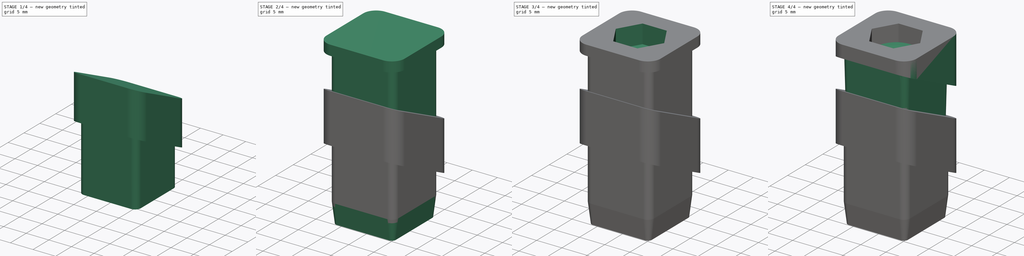
[diagram: build sequence overview — one tinted view per stage of 4, left to right]
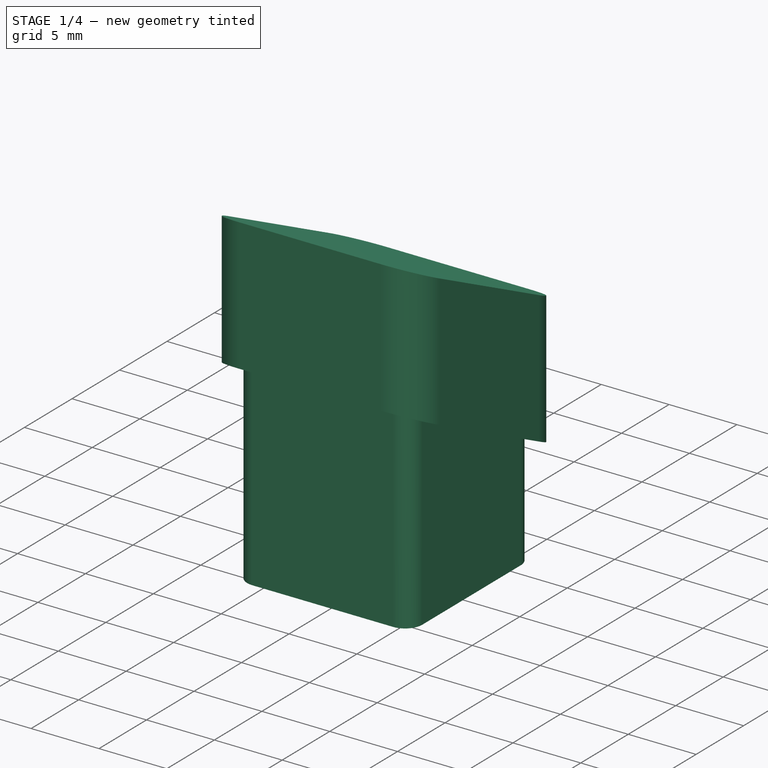
[diagram: stage 1 of 4 — iso view after this stage's code; geometry added in this stage tinted green]
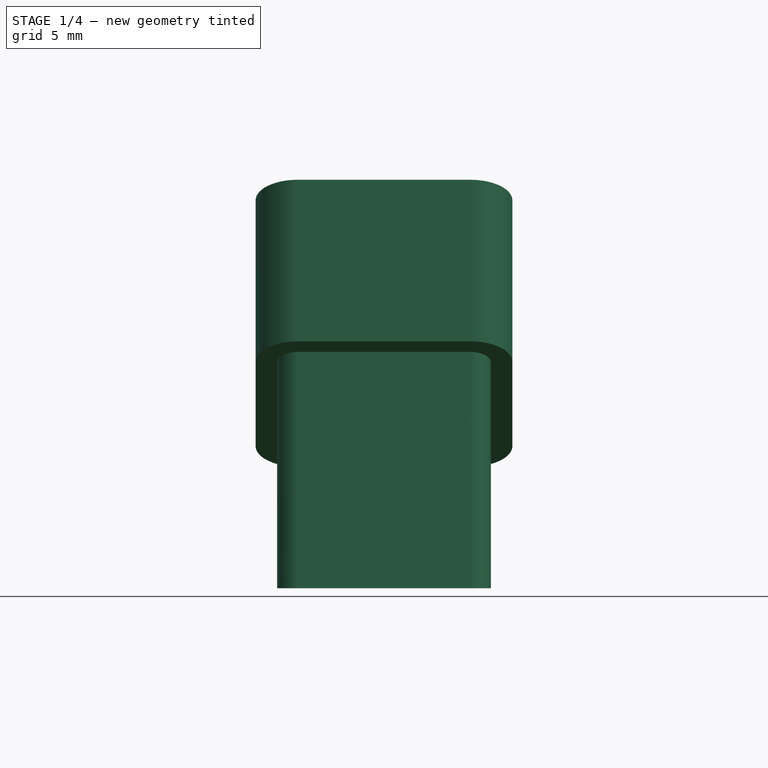
[diagram: stage 1 of 4 — front view after this stage's code; geometry added in this stage tinted green]
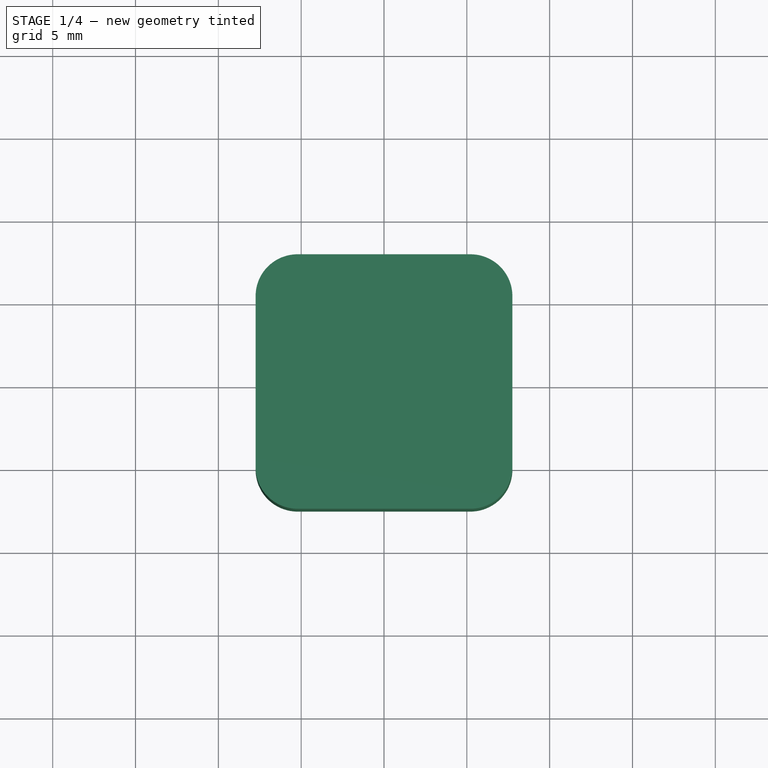
[diagram: stage 1 of 4 — top view after this stage's code; geometry added in this stage tinted green]
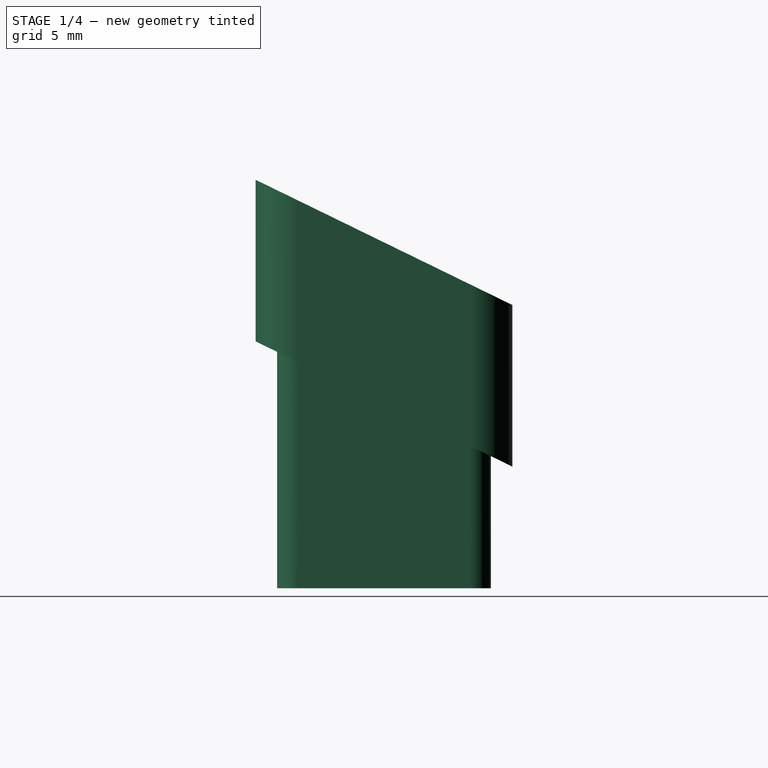
[diagram: stage 1 of 4 — right view after this stage's code; geometry added in this stage tinted green]
FCSTD DOCUMENT  (FreeCAD 1.0R39319 (Git))
Label: harmonograph_pipe_cap
License: CERN Open Hardware Licence permissive
LicenseURL: https://cern-ohl.web.cern.ch/
objects: Sketcher::SketchObject×6, PartDesign::Pad×6, PartDesign::Plane×3, PartDesign::Body×2, App::VarSet×1, Part::FeaturePython×1, PartDesign::Pocket×1, PartDesign::Hole×1, PartDesign::Draft×1, PartDesign::Chamfer×1
note: 48 computed .brp shape members not serialized (recipe doc carries the construction recipe); baked Part::Feature solids carry a one-line shape summary decoded from their .brp

FEATURE [PartDesign::Body] Body  label="pipe_cap"
  AllowCompound = false
  Group = -> [Sketch,Pad,Sketch001,Pad001,Sketch002,Pocket,Sketch003,Hole,DatumPlane,Pad002,Draft]
  Origin = -> Origin
  Tip = -> Draft
FEATURE [Sketcher::SketchObject] Sketch004
  ArcFitTolerance = 1e-06
  AttachmentSupport = -> [XY_Plane001]
  FullyConstrained = true
  MakeInternals = false
  MapMode = 5
  expr: Constraints[19] = VarSet.pipe_size_outside
  expr: Constraints[20] = VarSet.pipe_size_outside
  expr: Constraints[21] = 1.27 * 2
  sketch-geometry (10):
    g0: LineSegment StartX=7.75 StartY=-5.21 StartZ=0 EndX=7.75 EndY=5.21 EndZ=0
    g1: LineSegment StartX=5.21 StartY=7.75 StartZ=0 EndX=-5.21 EndY=7.75 EndZ=0
    g2: LineSegment StartX=-7.75 StartY=5.21 StartZ=0 EndX=-7.75 EndY=-5.21 EndZ=0
    g3: LineSegment StartX=-5.21 StartY=-7.75 StartZ=0 EndX=5.21 EndY=-7.75 EndZ=0
    g4: ArcOfCircle CenterX=5.21 CenterY=-5.21 CenterZ=0 NormalX=0 NormalY=0 NormalZ=1 AngleXU=0 Radius=2.54 StartAngle=4.71239 EndAngle=6.28319
    g5: ArcOfCircle CenterX=5.21 CenterY=5.21 CenterZ=0 NormalX=0 NormalY=0 NormalZ=1 AngleXU=0 Radius=2.54 StartAngle=0 EndAngle=1.5708
    g6: ArcOfCircle CenterX=-5.21 CenterY=5.21 CenterZ=0 NormalX=0 NormalY=0 NormalZ=1 AngleXU=0 Radius=2.54 StartAngle=1.5708 EndAngle=3.14159
    g7: ArcOfCircle CenterX=-5.21 CenterY=-5.21 CenterZ=0 NormalX=0 NormalY=0 NormalZ=1 AngleXU=0 Radius=2.54 StartAngle=3.14159 EndAngle=4.71239
    g8: GeomPoint [constr] X=-7.75 Y=7.75 Z=0
    g9: GeomPoint [constr] X=0 Y=0 Z=0
  constraints (22):
    c: Tangent(g0,g4) = -1.5708
    c: Tangent(g0,g5) = -1.5708
    c: Tangent(g1,g5) = -1.5708
    c: Tangent(g1,g6) = -1.5708
    c: Tangent(g2,g6) = -1.5708
    c: Tangent(g2,g7) = -1.5708
    c: Tangent(g3,g7) = -1.5708
    c: Tangent(g3,g4) = -1.5708
    c: Vertical(g0)
    c: Vertical(g2)
    c: Horizontal(g1)
    c: Horizontal(g3)
    c: Equal(g4,g5)
    c: Equal(g5,g6)
    c: Equal(g6,g7)
    c: Symmetric(g2,g0,g9)
    c: PointOnObject(g8,g1)
    c: PointOnObject(g8,g2)
    c: Coincident(g9,g-1)
    c: DistanceX(g2,g0) = 15.5
    c: DistanceY(g3,g1) = 15.5
    c: Radius(g7) = 2.54
FEATURE [PartDesign::Plane] DatumPlane001
  AttachmentOffset = pos=(0,-10,0) rot=(-1,0,0;0.453786rad)
  AttachmentSupport = -> [XY_Plane001]
  Length = 61.5636
  MapMode = 5
  Placement = pos=(0,-10,0) rot=(-1,0,0;0.453786rad)
  ResizeMode = 0
  Width = 78.4218
FEATURE [PartDesign::Plane] DatumPlane002
  AttachmentOffset = pos=(0,10,0) rot=(-1,0,0;0.453786rad)
  AttachmentSupport = -> [XY_Plane001]
  Length = 61.5636
  MapMode = 5
  Placement = pos=(0,10,0) rot=(-1,0,0;0.453786rad)
  ResizeMode = 0
  Width = 78.4218
FEATURE [PartDesign::Pad] Pad003
  Direction = (0,0,1)
  Length = 10
  Length2 = 10
  Midplane = true
  Profile = -> Sketch004
  ReferenceAxis = -> Sketch004 [N_Axis]
  Refine = true
  Suppressed = false
  Type = 3
  UpToFace = -> DatumPlane001
FEATURE [PartDesign::Pad] Pad004
  BaseFeature = -> Pad003
  Direction = (0,0,1)
  Length = 10
  Length2 = 10
  Profile = -> Sketch004
  ReferenceAxis = -> Sketch004 [N_Axis]
  Refine = true
  Suppressed = false
  Type = 3
  UpToFace = -> DatumPlane002 [Plane]
FEATURE [Sketcher::SketchObject] Sketch005
  ArcFitTolerance = 1e-06
  AttachmentSupport = -> [XY_Plane001]
  FullyConstrained = true
  MakeInternals = false
  MapMode = 5
  expr: Constraints[19] = VarSet.pipe_size_inside
  expr: Constraints[20] = VarSet.pipe_size_inside
  sketch-geometry (10):
    g0: LineSegment StartX=6.45 StartY=-5.18 StartZ=0 EndX=6.45 EndY=5.18 EndZ=0
    g1: LineSegment StartX=5.18 StartY=6.45 StartZ=0 EndX=-5.18 EndY=6.45 EndZ=0
    g2: LineSegment StartX=-6.45 StartY=5.18 StartZ=0 EndX=-6.45 EndY=-5.18 EndZ=0
    g3: LineSegment StartX=-5.18 StartY=-6.45 StartZ=0 EndX=5.18 EndY=-6.45 EndZ=0
    g4: ArcOfCircle CenterX=5.18 CenterY=-5.18 CenterZ=0 NormalX=0 NormalY=0 NormalZ=1 AngleXU=0 Radius=1.27 StartAngle=4.71239 EndAngle=6.28319
    g5: ArcOfCircle CenterX=5.18 CenterY=5.18 CenterZ=0 NormalX=0 NormalY=0 NormalZ=1 AngleXU=0 Radius=1.27 StartAngle=1.1885e-12 EndAngle=1.5708
    g6: ArcOfCircle CenterX=-5.18 CenterY=5.18 CenterZ=0 NormalX=0 NormalY=0 NormalZ=1 AngleXU=0 Radius=1.27 StartAngle=1.5708 EndAngle=3.14159
    g7: ArcOfCircle CenterX=-5.18 CenterY=-5.18 CenterZ=0 NormalX=0 NormalY=0 NormalZ=1 AngleXU=0 Radius=1.27 StartAngle=3.14159 EndAngle=4.71239
    g8: GeomPoint [constr] X=-6.45 Y=6.45 Z=0
    g9: GeomPoint [constr] X=0 Y=0 Z=0
  constraints (22):
    c: Tangent(g0,g4) = -1.5708
    c: Tangent(g0,g5) = -1.5708
    c: Tangent(g1,g5) = -1.5708
    c: Tangent(g1,g6) = -1.5708
    c: Tangent(g2,g6) = -1.5708
    c: Tangent(g2,g7) = -1.5708
    c: Tangent(g3,g7) = -1.5708
    c: Tangent(g3,g4) = -1.5708
    c: Vertical(g0)
    c: Vertical(g2)
    c: Horizontal(g1)
    c: Horizontal(g3)
    c: Equal(g4,g5)
    c: Equal(g5,g6)
    c: Equal(g6,g7)
    c: Symmetric(g2,g0,g9)
    c: PointOnObject(g8,g1)
    c: PointOnObject(g8,g2)
    c: Coincident(g9,g-1)
    c: Distance(g2,g0) = 12.9
    c: DistanceY(g3,g1) = 12.9
    c: Radius(g4) = 1.27
FEATURE [PartDesign::Pad] Pad005
  BaseFeature = -> Pad004
  Direction = (0,0,1)
  Length = 16
  Length2 = 10
  Profile = -> Sketch005
  ReferenceAxis = -> Sketch005 [N_Axis]
  Refine = true
  Reversed = true
  Suppressed = false
  Type = 0
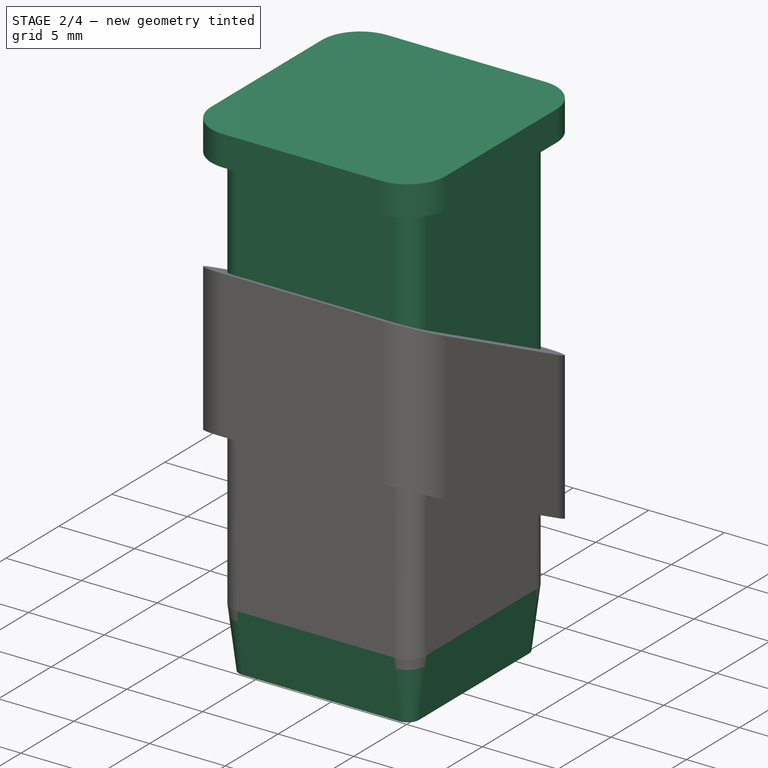
[diagram: stage 2 of 4 — iso view after this stage's code; geometry added in this stage tinted green]
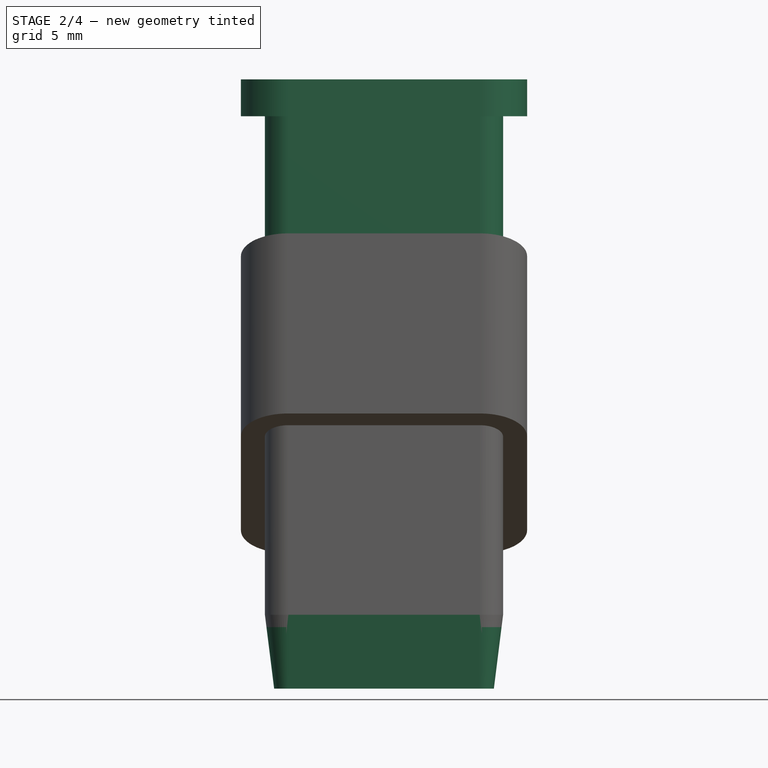
[diagram: stage 2 of 4 — front view after this stage's code; geometry added in this stage tinted green]
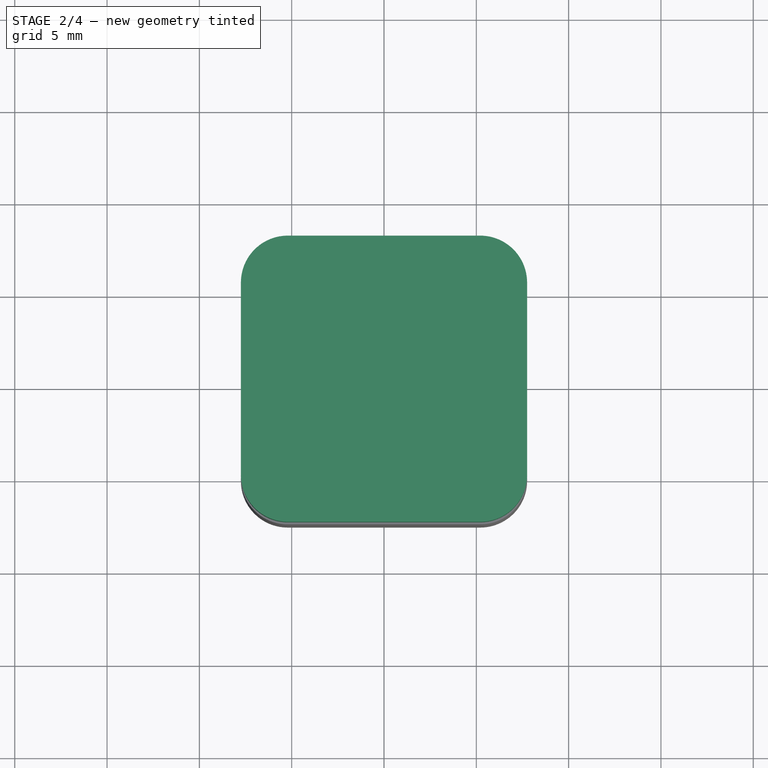
[diagram: stage 2 of 4 — top view after this stage's code; geometry added in this stage tinted green]
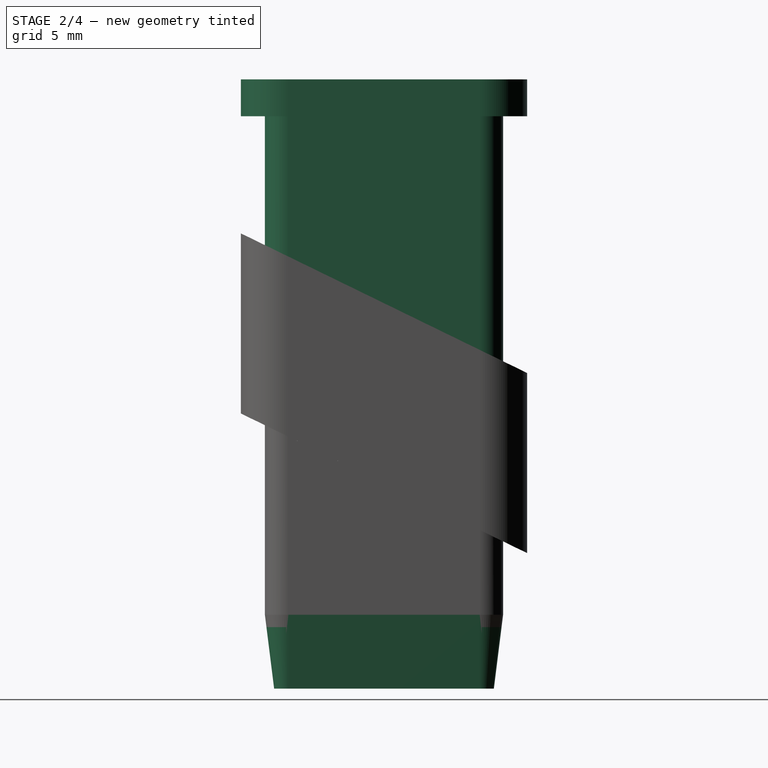
[diagram: stage 2 of 4 — right view after this stage's code; geometry added in this stage tinted green]
FEATURE [Sketcher::SketchObject] Sketch
  ArcFitTolerance = 1e-06
  AttachmentSupport = -> [XY_Plane]
  FullyConstrained = true
  MakeInternals = false
  MapMode = 5
  expr: Constraints[18] = VarSet.pipe_size_inside
  expr: Constraints[19] = VarSet.pipe_size_inside
  sketch-geometry (10):
    g0: LineSegment StartX=-5.18 StartY=-6.45 StartZ=0 EndX=5.18 EndY=-6.45 EndZ=0
    g1: LineSegment StartX=6.45 StartY=-5.18 StartZ=0 EndX=6.45 EndY=5.18 EndZ=0
    g2: LineSegment StartX=5.18 StartY=6.45 StartZ=0 EndX=-5.18 EndY=6.45 EndZ=0
    g3: LineSegment StartX=-6.45 StartY=5.18 StartZ=0 EndX=-6.45 EndY=-5.18 EndZ=0
    g4: ArcOfCircle CenterX=-5.18 CenterY=-5.18 CenterZ=0 NormalX=0 NormalY=0 NormalZ=1 AngleXU=0 Radius=1.27 StartAngle=3.14159 EndAngle=4.71239
    g5: ArcOfCircle CenterX=5.18 CenterY=-5.18 CenterZ=0 NormalX=0 NormalY=0 NormalZ=1 AngleXU=0 Radius=1.27 StartAngle=4.71239 EndAngle=6.28319
    g6: ArcOfCircle CenterX=5.18 CenterY=5.18 CenterZ=0 NormalX=0 NormalY=0 NormalZ=1 AngleXU=0 Radius=1.27 StartAngle=-9e-16 EndAngle=1.5708
    g7: ArcOfCircle CenterX=-5.18 CenterY=5.18 CenterZ=0 NormalX=0 NormalY=0 NormalZ=1 AngleXU=0 Radius=1.27 StartAngle=1.5708 EndAngle=3.14159
    g8: GeomPoint [constr] X=6.45 Y=6.45 Z=0
    g9: GeomPoint [constr] X=0 Y=0 Z=0
  constraints (22):
    c: Tangent(g0,g4) = -1.5708
    c: Tangent(g0,g5) = -1.5708
    c: Tangent(g1,g5) = -1.5708
    c: Tangent(g1,g6) = -1.5708
    c: Tangent(g2,g6) = -1.5708
    c: Tangent(g2,g7) = -1.5708
    c: Tangent(g3,g7) = -1.5708
    c: Tangent(g3,g4) = -1.5708
    c: Horizontal(g0)
    c: Horizontal(g2)
    c: Vertical(g1)
    c: Vertical(g3)
    c: Equal(g4,g5)
    c: Equal(g5,g6)
    c: Equal(g6,g7)
    c: Symmetric(g2,g0,g9)
    c: PointOnObject(g8,g1)
    c: PointOnObject(g8,g2)
    c: Distance(g1,g3) = 12.9
    c: Distance(g0,g2) = 12.9
    c: Radius(g5) = 1.27
    c: Coincident(g9,g-1)
FEATURE [PartDesign::Pad] Pad
  Direction = (0,0,1)
  Length = 15
  Length2 = 10
  Profile = -> Sketch
  ReferenceAxis = -> Sketch [N_Axis]
  Refine = true
  Suppressed = false
  Type = 0
  expr: Length = VarSet.sq_height
FEATURE [App::VarSet] VarSet
  pipe_size_inside = 12.9
  pipe_size_outside = 15.5
  sq_height = 15
  sq_height_2 = 2
FEATURE [Sketcher::SketchObject] Sketch001
  ArcFitTolerance = 1e-06
  AttachmentOffset = pos=(0,0,15) rot=(0,0,1;0rad)
  AttachmentSupport = -> [XY_Plane]
  FullyConstrained = true
  MakeInternals = false
  MapMode = 5
  Placement = pos=(0,0,15) rot=(0,0,1;0rad)
  expr: .AttachmentOffset.Base.z = VarSet.sq_height
  expr: Constraints[20] = VarSet.pipe_size_outside
  expr: Constraints[21] = VarSet.pipe_size_outside
  sketch-geometry (10):
    g0: LineSegment StartX=7.75 StartY=-5.21 StartZ=0 EndX=7.75 EndY=5.21 EndZ=0
    g1: LineSegment StartX=5.21 StartY=7.75 StartZ=0 EndX=-5.21 EndY=7.75 EndZ=0
    g2: LineSegment StartX=-7.75 StartY=5.21 StartZ=0 EndX=-7.75 EndY=-5.21 EndZ=0
    g3: LineSegment StartX=-5.21 StartY=-7.75 StartZ=0 EndX=5.21 EndY=-7.75 EndZ=0
    g4: ArcOfCircle CenterX=5.21 CenterY=-5.21 CenterZ=0 NormalX=0 NormalY=0 NormalZ=1 AngleXU=0 Radius=2.54 StartAngle=4.71239 EndAngle=6.28319
    g5: ArcOfCircle CenterX=5.21 CenterY=5.21 CenterZ=0 NormalX=0 NormalY=0 NormalZ=1 AngleXU=0 Radius=2.54 StartAngle=-7.4865e-12 EndAngle=1.5708
    g6: ArcOfCircle CenterX=-5.21 CenterY=5.21 CenterZ=0 NormalX=0 NormalY=0 NormalZ=1 AngleXU=0 Radius=2.54 StartAngle=1.5708 EndAngle=3.14159
    g7: ArcOfCircle CenterX=-5.21 CenterY=-5.21 CenterZ=0 NormalX=0 NormalY=0 NormalZ=1 AngleXU=0 Radius=2.54 StartAngle=3.14159 EndAngle=4.71239
    g8: GeomPoint [constr] X=-7.75 Y=7.75 Z=0
    g9: GeomPoint [constr] X=0 Y=0 Z=0
  constraints (22):
    c: Tangent(g0,g4) = -1.5708
    c: Tangent(g0,g5) = -1.5708
    c: Tangent(g1,g5) = -1.5708
    c: Tangent(g1,g6) = -1.5708
    c: Tangent(g2,g6) = -1.5708
    c: Tangent(g2,g7) = -1.5708
    c: Tangent(g3,g7) = -1.5708
    c: Tangent(g3,g4) = -1.5708
    c: Vertical(g0)
    c: Vertical(g2)
    c: Horizontal(g1)
    c: Horizontal(g3)
    c: Equal(g4,g5)
    c: Equal(g5,g6)
    c: Equal(g6,g7)
    c: Symmetric(g2,g0,g9)
    c: PointOnObject(g8,g1)
    c: PointOnObject(g8,g2)
    c: Radius(g5) = 2.54
    c: Coincident(g9,g-1)
    c: DistanceY(g3,g1) = 15.5
    c: DistanceX(g2,g0) = 15.5
FEATURE [PartDesign::Pad] Pad001
  BaseFeature = -> Pad
  Direction = (0,0,1)
  Length = 2
  Length2 = 10
  Profile = -> Sketch001
  ReferenceAxis = -> Sketch001 [N_Axis]
  Refine = true
  Suppressed = false
  Type = 0
  expr: Length = VarSet.sq_height_2
FEATURE [PartDesign::Chamfer] Chamfer
  Angle = 45
  Base = -> Pad005 [Edge47]
  BaseFeature = -> Pad005
  ChamferType = 1
  FlipDirection = false
  Refine = true
  Size = 4
  Size2 = 0.5
  SupportTransform = false
  Suppressed = false
  UseAllEdges = false
FEATURE [PartDesign::Body] Body001  label="Body"
  AllowCompound = false
  Group = -> [Sketch004,DatumPlane001,DatumPlane002,Pad003,Pad004,Sketch005,Pad005,Chamfer]
  Origin = -> Origin001
  Tip = -> Chamfer
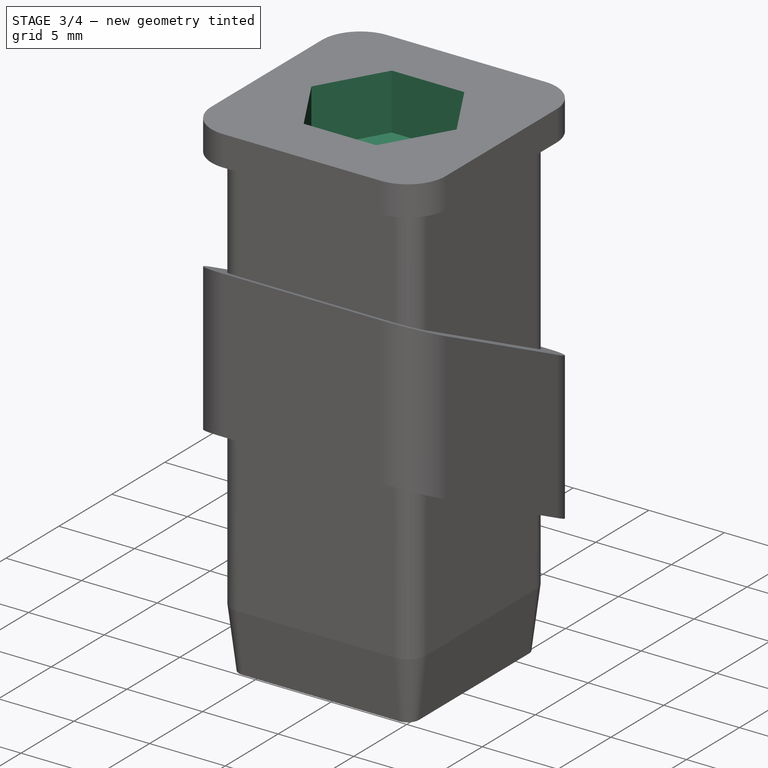
[diagram: stage 3 of 4 — iso view after this stage's code; geometry added in this stage tinted green]
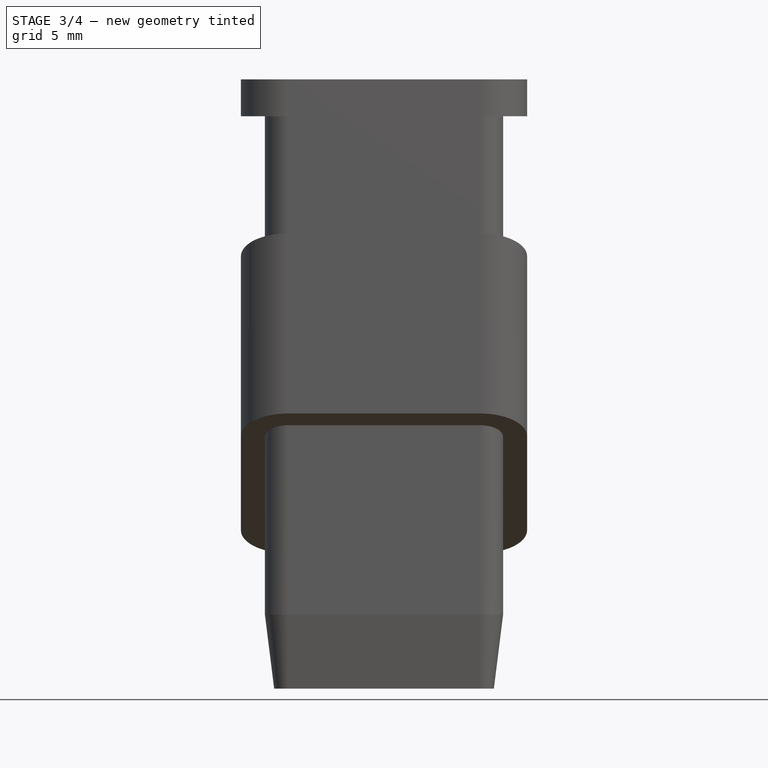
[diagram: stage 3 of 4 — front view after this stage's code; geometry added in this stage tinted green]
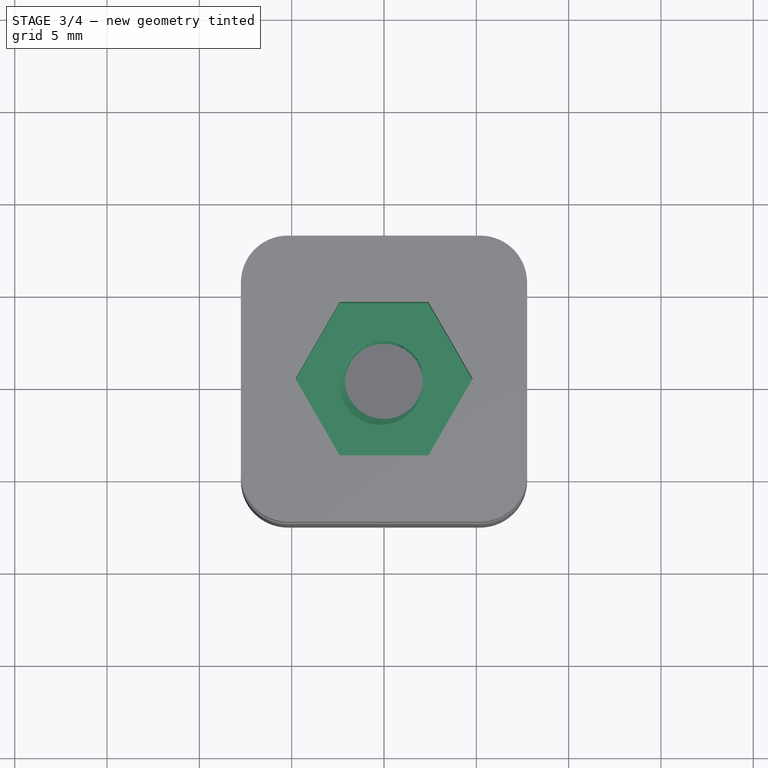
[diagram: stage 3 of 4 — top view after this stage's code; geometry added in this stage tinted green]
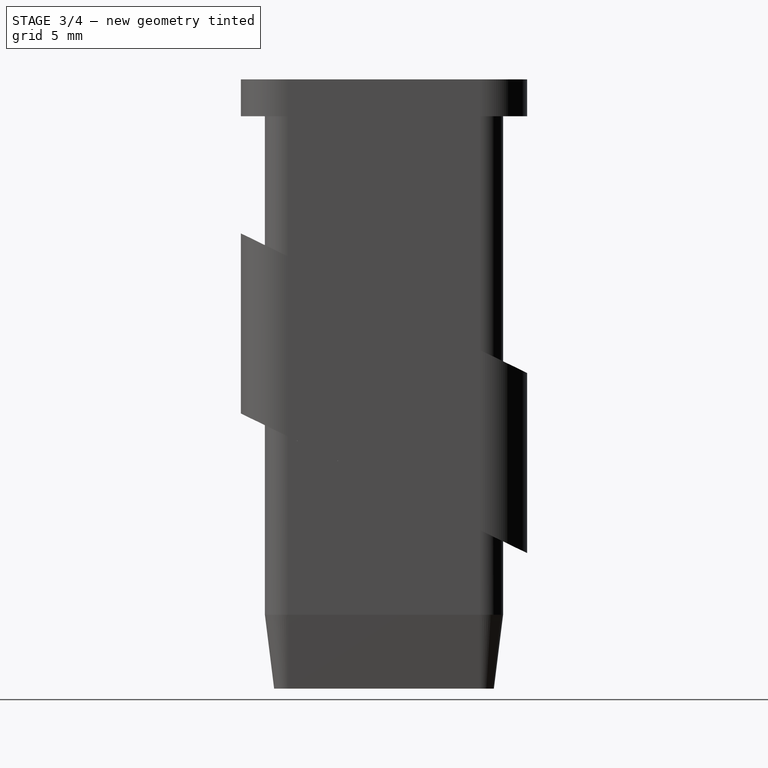
[diagram: stage 3 of 4 — right view after this stage's code; geometry added in this stage tinted green]
FEATURE [Sketcher::SketchObject] Sketch002
  ArcFitTolerance = 1e-06
  AttachmentOffset = pos=(0,0,17) rot=(0,0,1;0rad)
  AttachmentSupport = -> [XY_Plane]
  FullyConstrained = true
  MakeInternals = false
  MapMode = 5
  Placement = pos=(0,0,17) rot=(0,0,1;0rad)
  expr: .AttachmentOffset.Base.z = VarSet.sq_height + VarSet.sq_height_2
  sketch-geometry (7):
    g0: LineSegment StartX=-2.4 StartY=4.15692 StartZ=0 EndX=-4.8 EndY=-4.334e-13 EndZ=0
    g1: LineSegment StartX=-4.8 StartY=-4.334e-13 StartZ=0 EndX=-2.4 EndY=-4.15692 EndZ=0
    g2: LineSegment StartX=-2.4 StartY=-4.15692 StartZ=0 EndX=2.4 EndY=-4.15692 EndZ=0
    g3: LineSegment StartX=2.4 StartY=-4.15692 StartZ=0 EndX=4.8 EndY=-4.325e-13 EndZ=0
    g4: LineSegment StartX=4.8 StartY=-4.325e-13 StartZ=0 EndX=2.4 EndY=4.15692 EndZ=0
    g5: LineSegment StartX=2.4 StartY=4.15692 StartZ=0 EndX=-2.4 EndY=4.15692 EndZ=0
    g6: Circle [constr] CenterX=0 CenterY=0 CenterZ=0 NormalX=0 NormalY=0 NormalZ=1 AngleXU=0 Radius=4.8
  constraints (16):
    c: Coincident(g0,g1)
    c: Coincident(g1,g2)
    c: Coincident(g2,g3)
    c: Coincident(g3,g4)
    c: Coincident(g4,g5)
    c: Coincident(g5,g0)
    c: Equal(g0, g1-g5) x5
    c: PointOnObject(g0,g6)
    c: PointOnObject(g1,g6)
    c: PointOnObject(g2,g6)
    c: PointOnObject(g3,g6)
    c: PointOnObject(g4,g6)
    c: PointOnObject(g5,g6)
    c: Radius(g6) = 4.8
    c: Coincident(g6,g-1)
    c: Perpendicular(g-2,g5)
FEATURE [PartDesign::Pocket] Pocket
  BaseFeature = -> Pad001
  Direction = (0,0,-1)
  Length = 3.7
  Length2 = 5
  Profile = -> Sketch002
  ReferenceAxis = -> Sketch002 [N_Axis]
  Refine = true
  Suppressed = false
  Type = 0
FEATURE [Sketcher::SketchObject] Sketch003
  ArcFitTolerance = 1e-06
  AttachmentSupport = -> [XY_Plane]
  FullyConstrained = true
  MakeInternals = false
  MapMode = 5
  sketch-geometry (1):
    g0: Circle CenterX=0 CenterY=0 CenterZ=0 NormalX=0 NormalY=0 NormalZ=1 AngleXU=0 Radius=1.75
  constraints (2):
    c: Diameter(g0) = 3.5
    c: Coincident(g0,g-1)
FEATURE [PartDesign::Hole] Hole
  BaseFeature = -> Pocket
  CustomThreadClearance = 0
  Depth = 53.7487
  DepthType = 1
  Diameter = 4.224
  DrillForDepth = false
  DrillPoint = 1
  DrillPointAngle = 118
  HoleCutCountersinkAngle = 90
  HoleCutCustomValues = false
  HoleCutDepth = 0
  HoleCutDiameter = 6.1
  HoleCutType = 0
  ModelThread = true
  Profile = -> Sketch003
  Refine = true
  Reversed = true
  Suppressed = false
  Tapered = false
  TaperedAngle = 90
  ThreadClass = 0
  ThreadDepth = 53.7487
  ThreadDepthType = 0
  ThreadDirection = 0
  ThreadFit = 0
  ThreadSize = 13
  ThreadType = 1
  Threaded = true
  UseCustomThreadClearance = false
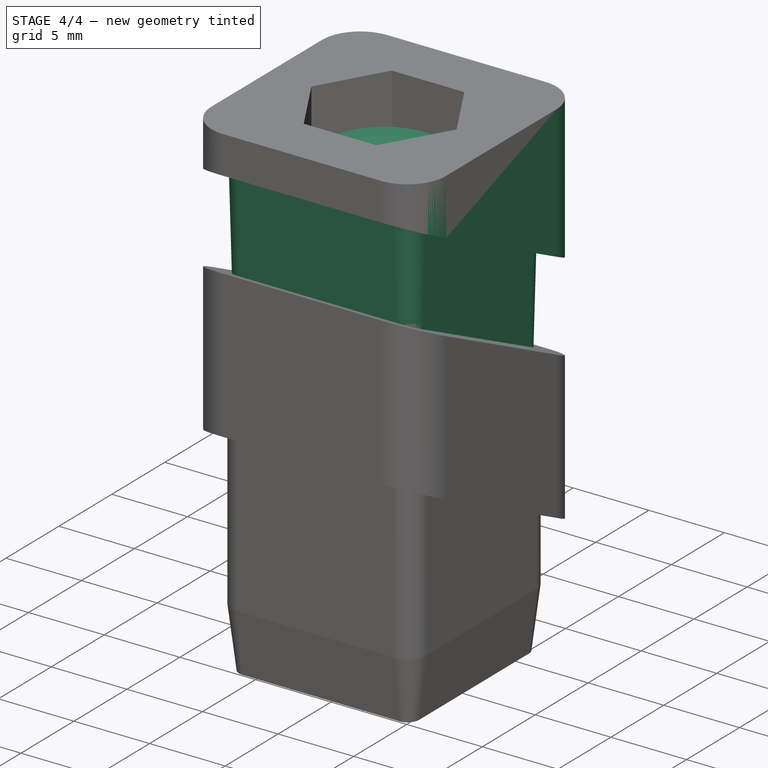
[diagram: stage 4 of 4 — iso view after this stage's code; geometry added in this stage tinted green]
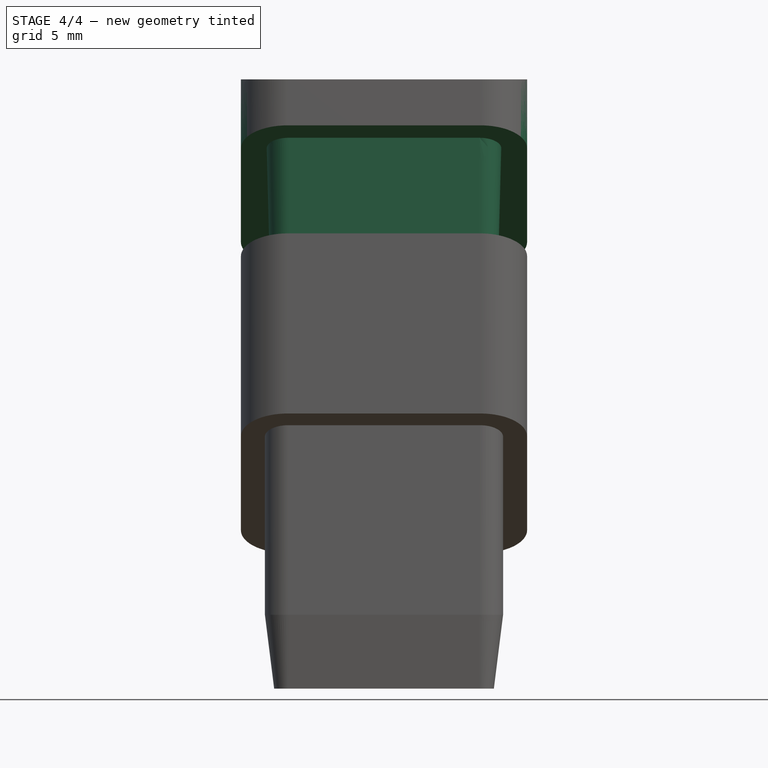
[diagram: stage 4 of 4 — front view after this stage's code; geometry added in this stage tinted green]
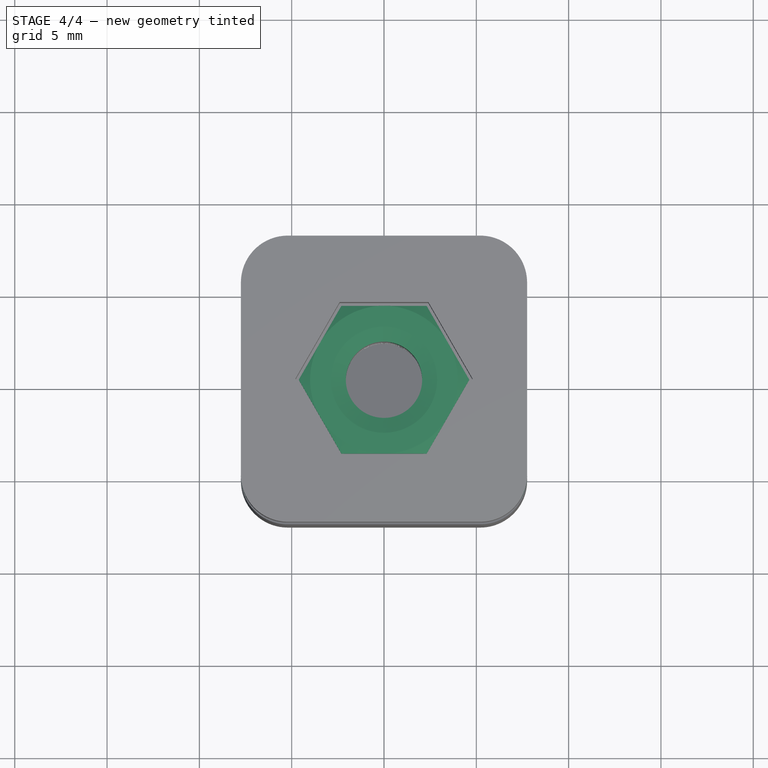
[diagram: stage 4 of 4 — top view after this stage's code; geometry added in this stage tinted green]
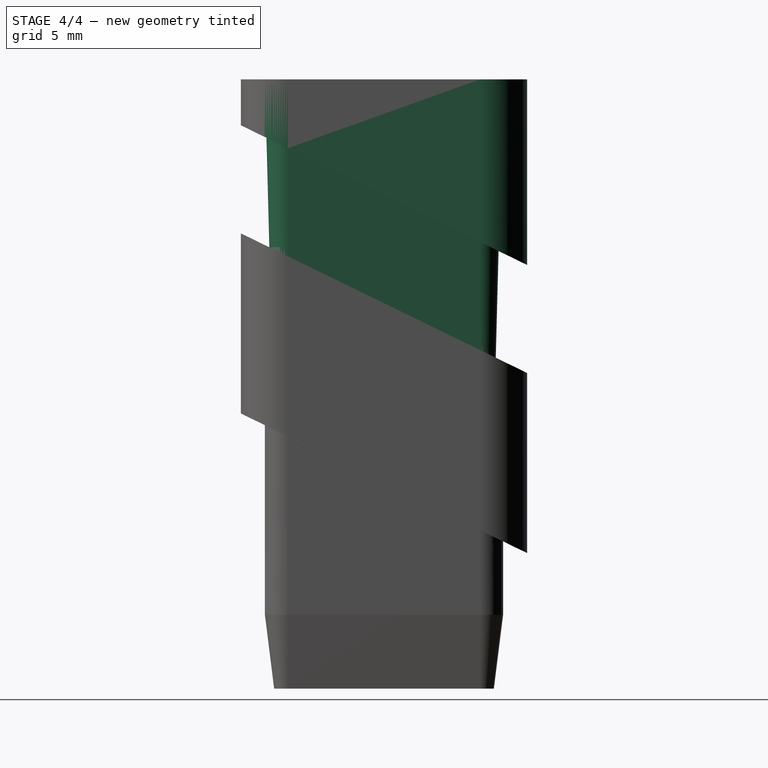
[diagram: stage 4 of 4 — right view after this stage's code; geometry added in this stage tinted green]
FEATURE [Part::FeaturePython] Nut  label="M5-Nut"  # WARN: FeaturePython — macro-defined, semantics opaque (R4)
  Diameter = 7
  Invert = false
  LeftHanded = false
  MatchOuter = false
  OffsetAngle = 0
  Placement = pos=(0,0,10.5) rot=(0,0,1;0rad)
  Thread = false
  Type = 31
FEATURE [PartDesign::Plane] DatumPlane
  AttachmentOffset = pos=(0,22,0) rot=(-1,0,0;0.453786rad)
  AttachmentSupport = -> [XY_Plane]
  Length = 61.5636
  MapMode = 5
  Placement = pos=(0,22,0) rot=(-1,0,0;0.453786rad)
  ResizeMode = 0
  Width = 78.4218
FEATURE [PartDesign::Pad] Pad002
  BaseFeature = -> Hole
  Direction = (0,0,-1)
  Length = 10
  Length2 = 10
  Profile = -> Hole [Face5]
  Refine = true
  Suppressed = false
  Type = 3
  UpToFace = -> DatumPlane
FEATURE [PartDesign::Draft] Draft
  Angle = 1.5
  Base = -> Pad002 [Face33,Face35,Face39,Face41,Face42,Face40,Face38,Face37]
  BaseFeature = -> Pad002
  NeutralPlane = -> Pad002 [Face1]
  Refine = true
  Reversed = true
  SupportTransform = false
  Suppressed = false
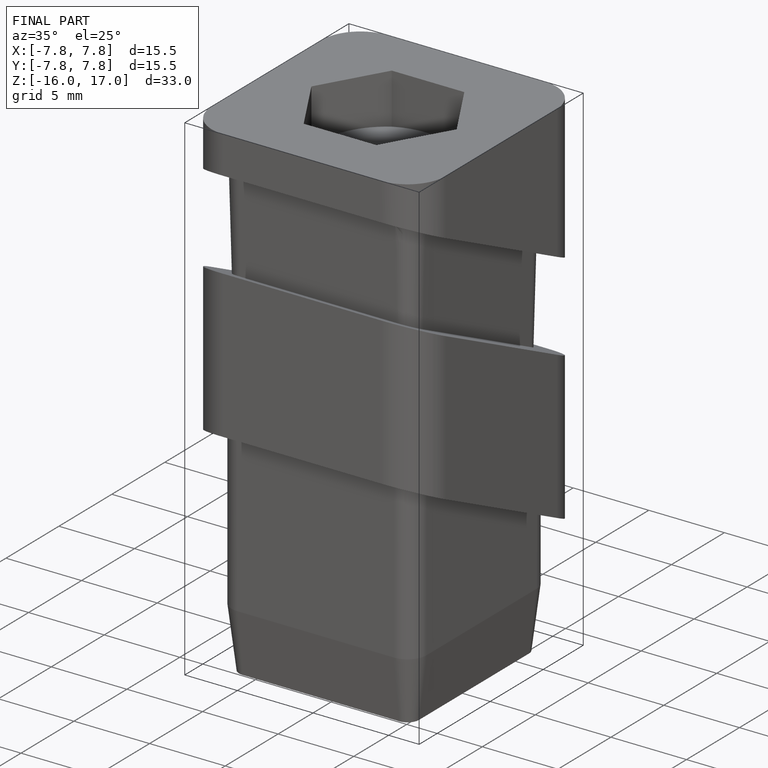
[diagram: finished part — iso view with bounding-box wireframe]
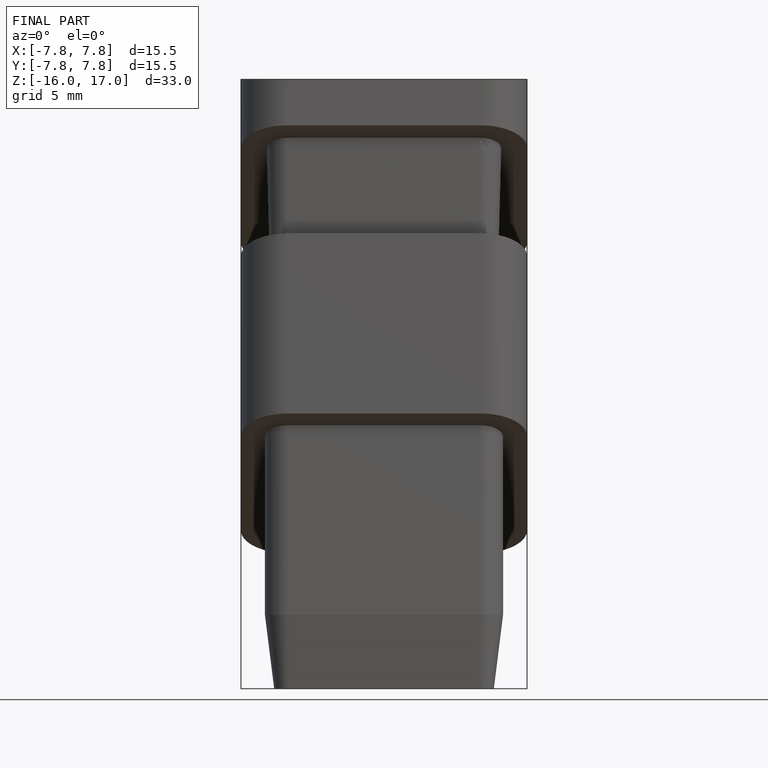
[diagram: finished part — front view with bounding-box wireframe]
